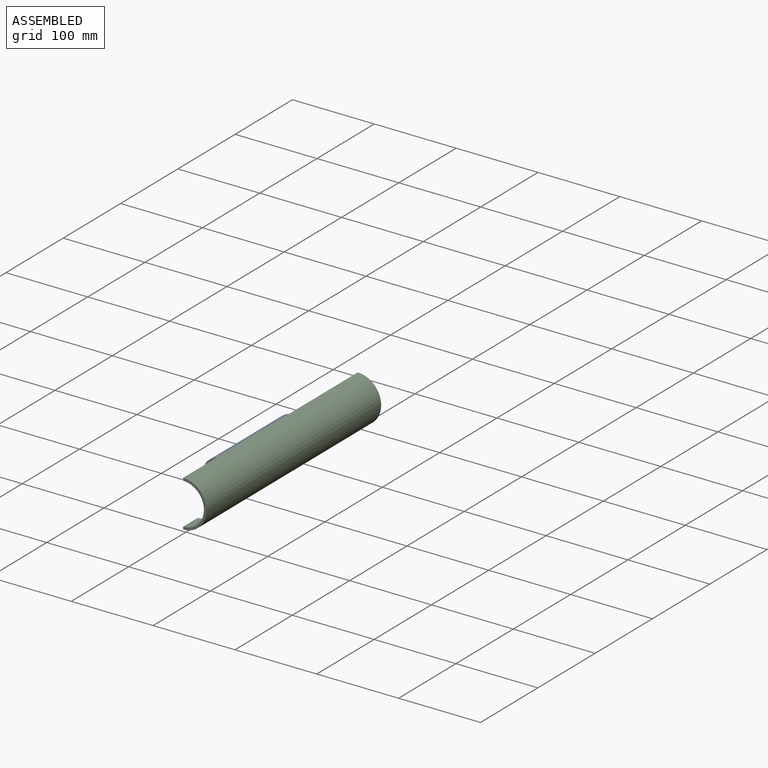
[diagram: assembled view]
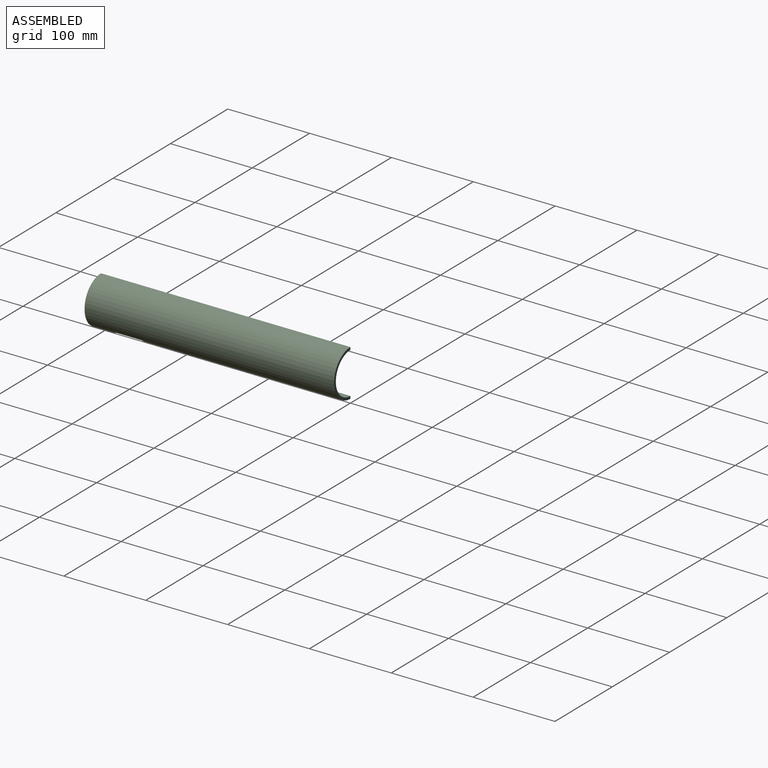
[diagram: assembled view, second angle]
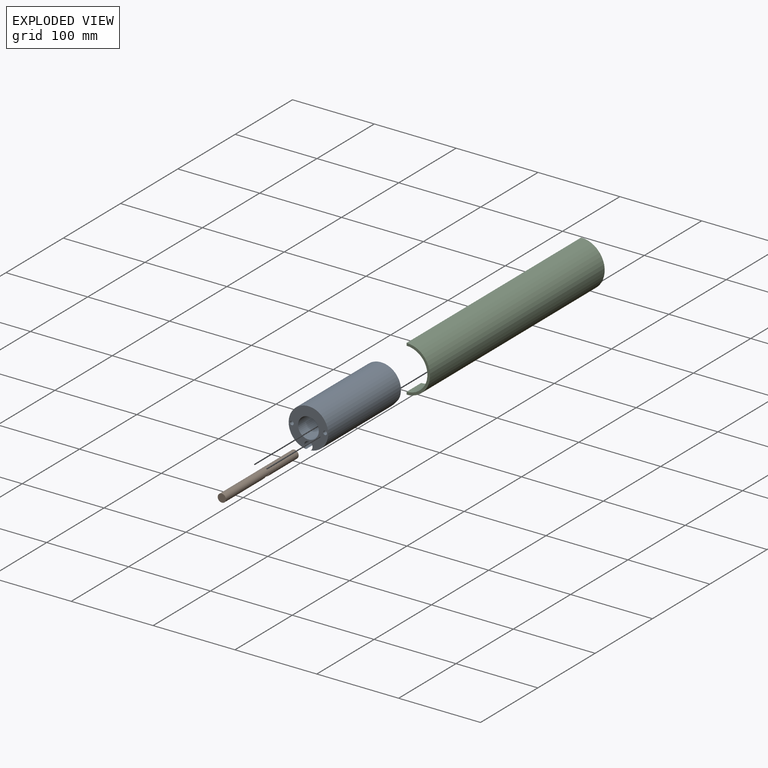
[diagram: exploded view]
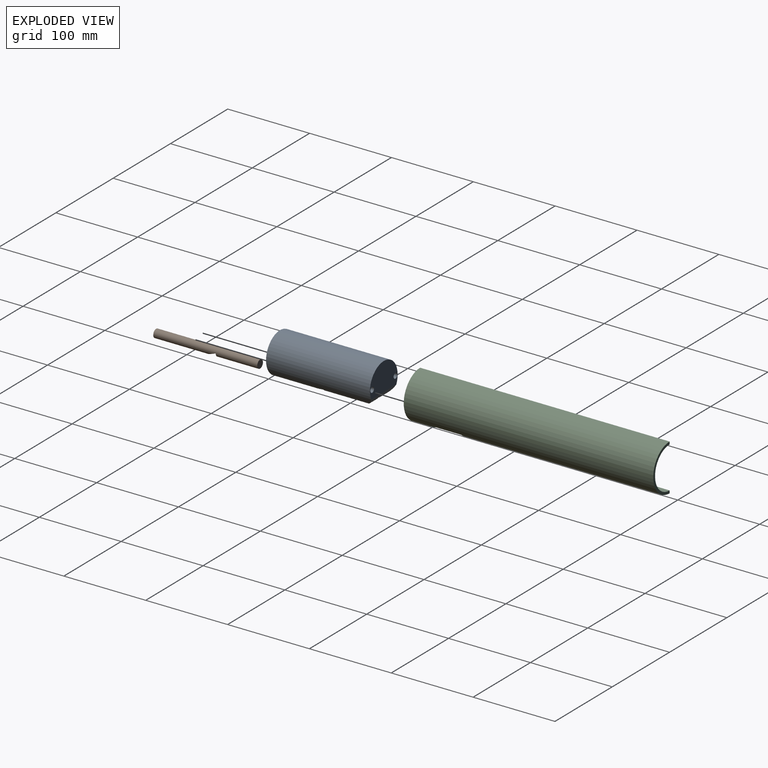
[diagram: exploded view, second angle]
ASSEMBLY  parts=3 mates=2
PART A: 17 faces, bbox 48.3x127x48.1 mm
  f0: plane 48.26x34.26mm, normal (0,1,0), area 1325.3mm2, adj f1,f4,f6,f16
  f1: cylinder r=24.13mm len=127mm, axis (0,1,0), area 17785.6mm2, adj f0,f2,f3,f12,f13,f14,f15,f16
  f2: cylinder r=5.08mm len=124.29mm, axis (0,-1,0), area 2981.8mm2, adj f1,f3,f12,f13,f14,f15,f16
  f3: plane 48.26x48.11mm, normal (0,-1,0), area 1210mm2, adj f1,f2,f8,f9,f10
  f4: cylinder r=3.17mm len=76.2mm, axis (0,1,0), area 1520.1mm2, adj f0,f5
  f5: plane 6.35x6.35mm, normal (0,1,0), area 14.8mm2, adj f4,f9
  f6: cylinder r=3.17mm len=76.2mm, axis (0,1,0), area 1520.1mm2, adj f0,f7
  f7: plane 6.35x6.35mm, normal (0,1,0), area 14.8mm2, adj f6,f8
  f8: cylinder r=2.32mm len=50.8mm, axis (0,1,0), area 739.8mm2, adj f3,f7
  f9: cylinder r=2.32mm len=50.8mm, axis (0,1,0), area 739.8mm2, adj f3,f5
  f10: cylinder r=12.7mm len=76.2mm, axis (0,-1,0), area 6080.5mm2, adj f3,f11
  f11: plane 25.4x25.4mm, normal (0,-1,0), area 506.7mm2, adj f10
  f12: plane 20.09x12.9mm, normal (0,0.27,-0.96), area 133.5mm2, adj f1,f2,f13
  f13: plane 12.9x5.59mm, normal (0,-1,0), area 35.8mm2, adj f1,f2,f12
  f14: plane 12.9x5.59mm, normal (0,-1,0), area 35.8mm2, adj f1,f2,f15
  f15: plane 20.09x12.9mm, normal (0,0.27,-0.96), area 133.5mm2, adj f1,f2,f14
  f16: cylinder r=23.99mm len=43.8mm, axis (1,0,0), area 515.4mm2, adj f0,f1,f2
PART B: 5 faces, bbox 10x127x10 mm
  f0: cylinder r=5mm len=127mm, axis (0,1,0), area 3865.8mm2, adj f1,f2,f3,f4
  f1: plane 10.01x10.01mm, normal (0,-1,0), area 78.7mm2, adj f0
  f2: plane 10.01x10.01mm, normal (0,1,0), area 78.7mm2, adj f0
  f3: plane 12.7x10.01mm, normal (0,0.37,-0.93), area 107.3mm2, adj f0,f4
  f4: plane 10.01x5mm, normal (0,-1,0), area 39.3mm2, adj f0,f3
PART C: 10 faces, bbox 28.6x304.8x57.2 mm
  f0: plane 25.4x3.18mm, normal (-1,0,0), area 80.6mm2, adj f1,f3,f5,f7
  f1: cylinder r=28.57mm len=304.8mm, axis (0,1,0), area 26567.7mm2, adj f0,f2,f4,f5,f6,f7,f8,f9
  f2: plane 304.8x3.18mm, normal (-1,0,0), area 967.7mm2, adj f1,f3,f5,f6
  f3: cylinder r=25.4mm len=304.8mm, axis (0,1,0), area 23501.3mm2, adj f0,f2,f4,f5,f6,f7,f8,f9
  f4: plane 241.3x3.18mm, normal (-1,0,0), area 766.1mm2, adj f1,f3,f6,f9
  f5: plane 57.15x28.58mm, normal (0,-1,0), area 269.2mm2, adj f0,f1,f2,f3
  f6: plane 57.15x28.58mm, normal (0,1,0), area 269.2mm2, adj f1,f2,f3,f4
  f7: plane 19.05x11.77mm, normal (0,1,0), area 67.2mm2, adj f0,f1,f3,f8
  f8: plane 38.1x4.5mm, normal (-1,0,0), area 171.4mm2, adj f1,f3,f7,f9
  f9: plane 19.05x11.77mm, normal (0,-1,0), area 67.2mm2, adj f1,f3,f4,f8
PLACE A t=(0,-110.17,-34.03)mm
PLACE B t=(0,-110.33,-53.71)mm
PLACE C t=(0,0,-34.03)mm fixed
MATE slider B.f0 <-> A.f2  axis (0,1,0) through (0,-173.83,-53.71)mm
MATE slider A.f1 <-> C.f3  axis (0,1,0) through (0,-173.67,-34.03)mm
